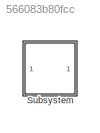
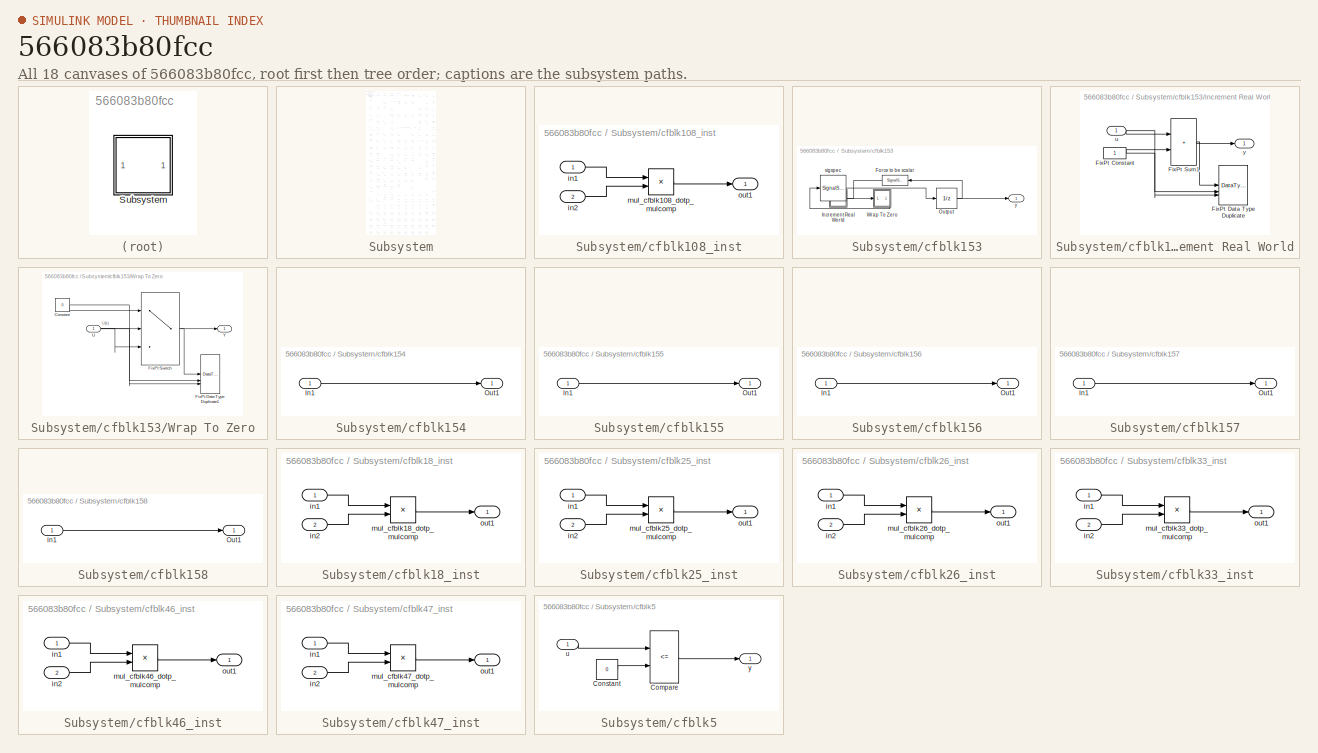
[diagram: thumbnail index - all 18 canvases of the model, root first then tree order]
MODEL slx_566083b80fcc
KIND model
CONFIG AbsTol = auto
CONFIG EnableMultiTasking = off
CONFIG FixedStep = auto
CONFIG MaxStep = auto
CONFIG MinStep = auto
CONFIG RelTol = 1e-3
CONFIG SampleTimeConstraint = Unconstrained
CONFIG SolverName = VariableStepAuto
CONFIG StartTime = 0.0
CONFIG StopTime = 10.0
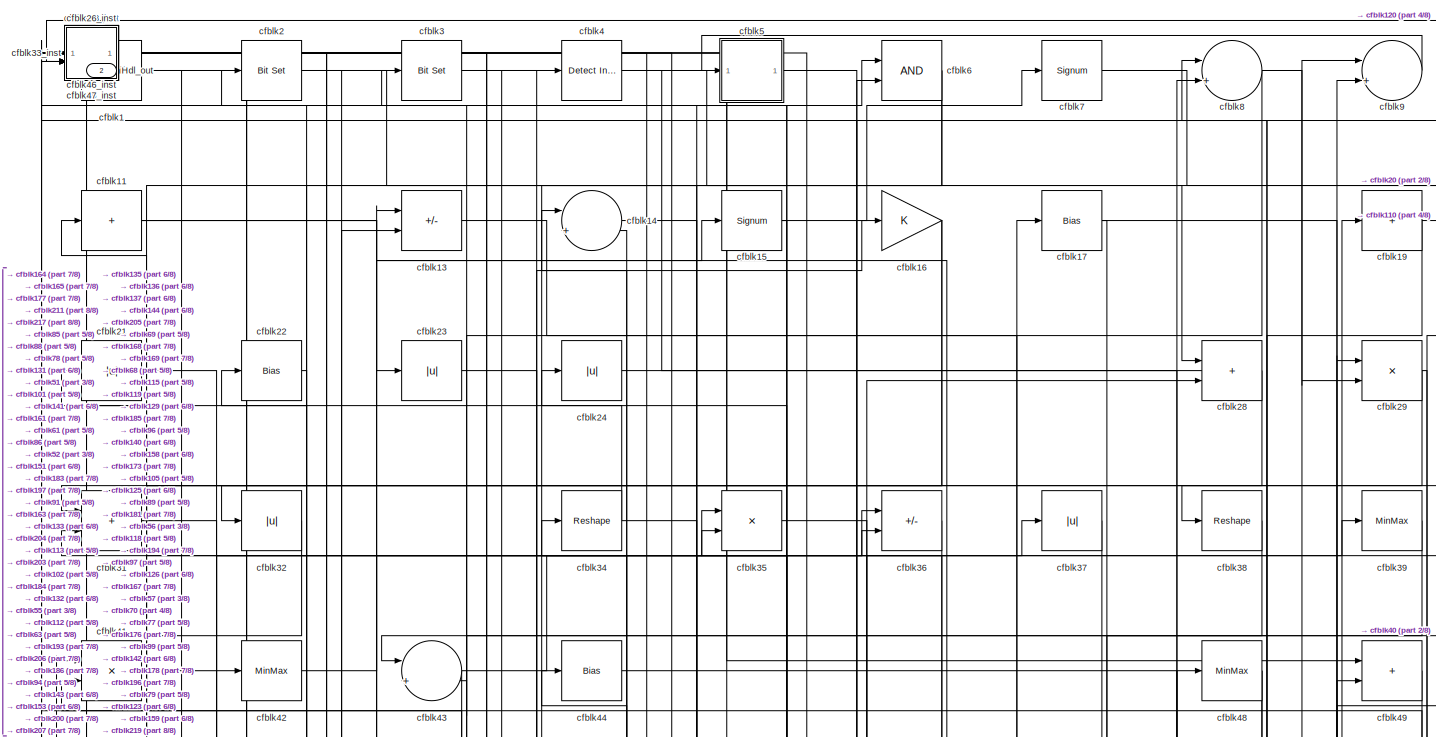
[diagram: Subsystem - part 1/8, full width, top band]
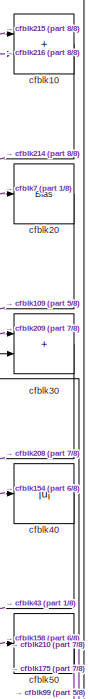
[diagram: Subsystem - part 2/8, top right region]
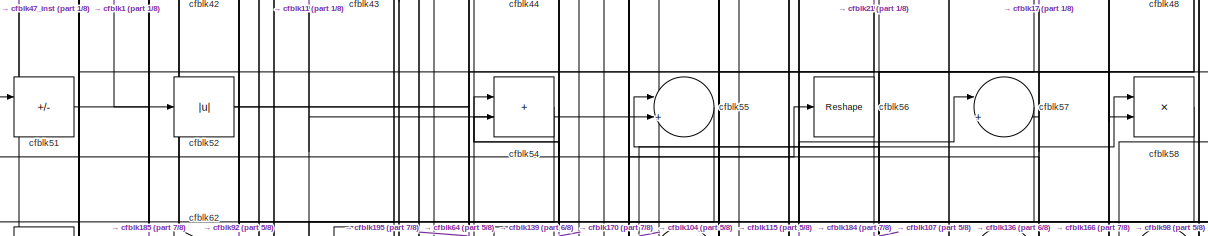
[diagram: Subsystem - part 3/8, full width, top band]
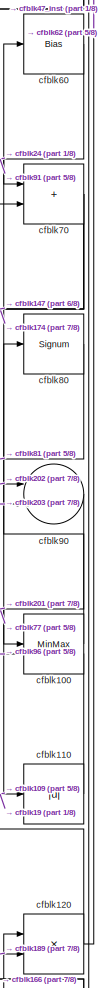
[diagram: Subsystem - part 4/8, middle right region]
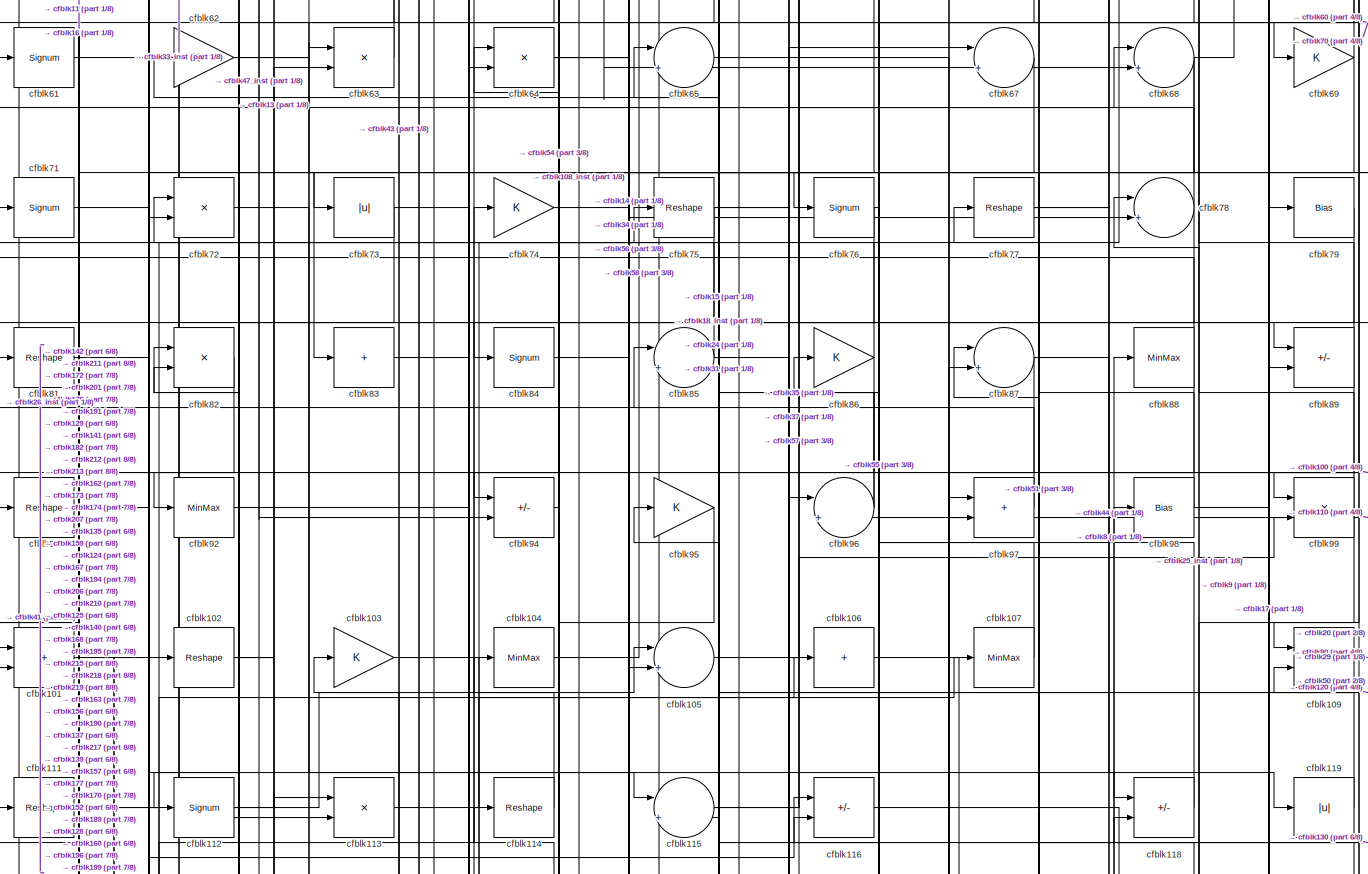
[diagram: Subsystem - part 5/8, full width, middle band]
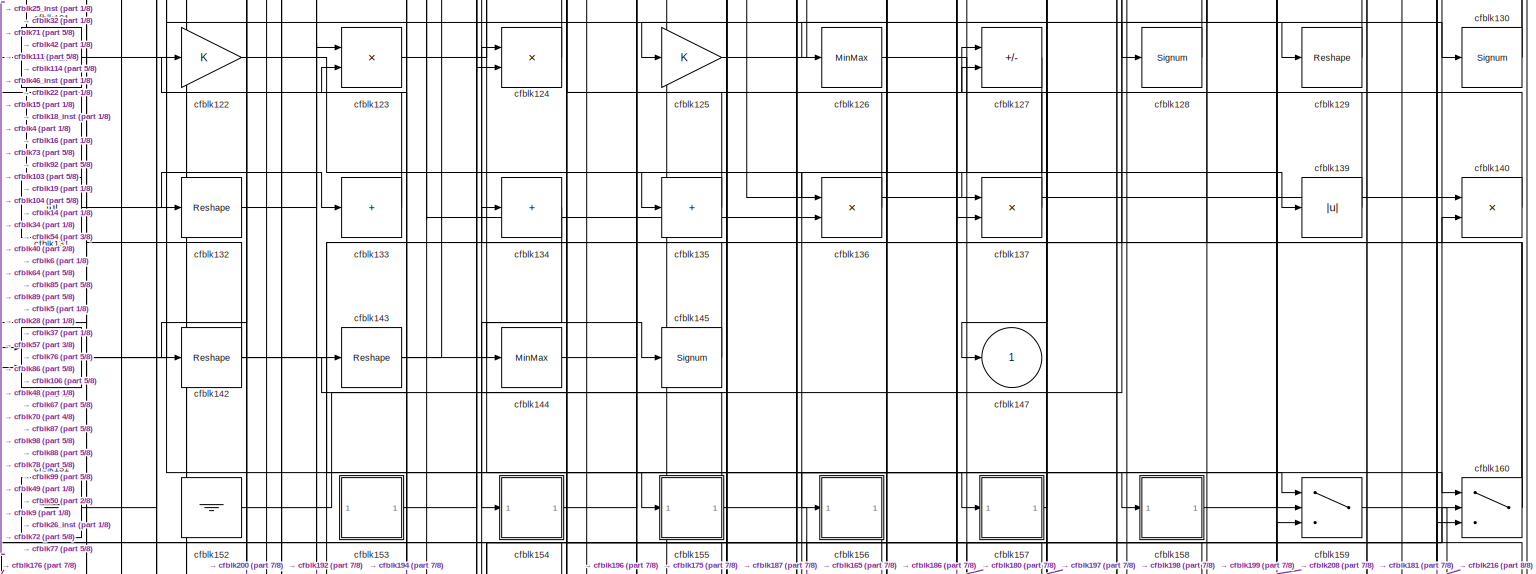
[diagram: Subsystem - part 6/8, full width, middle band]
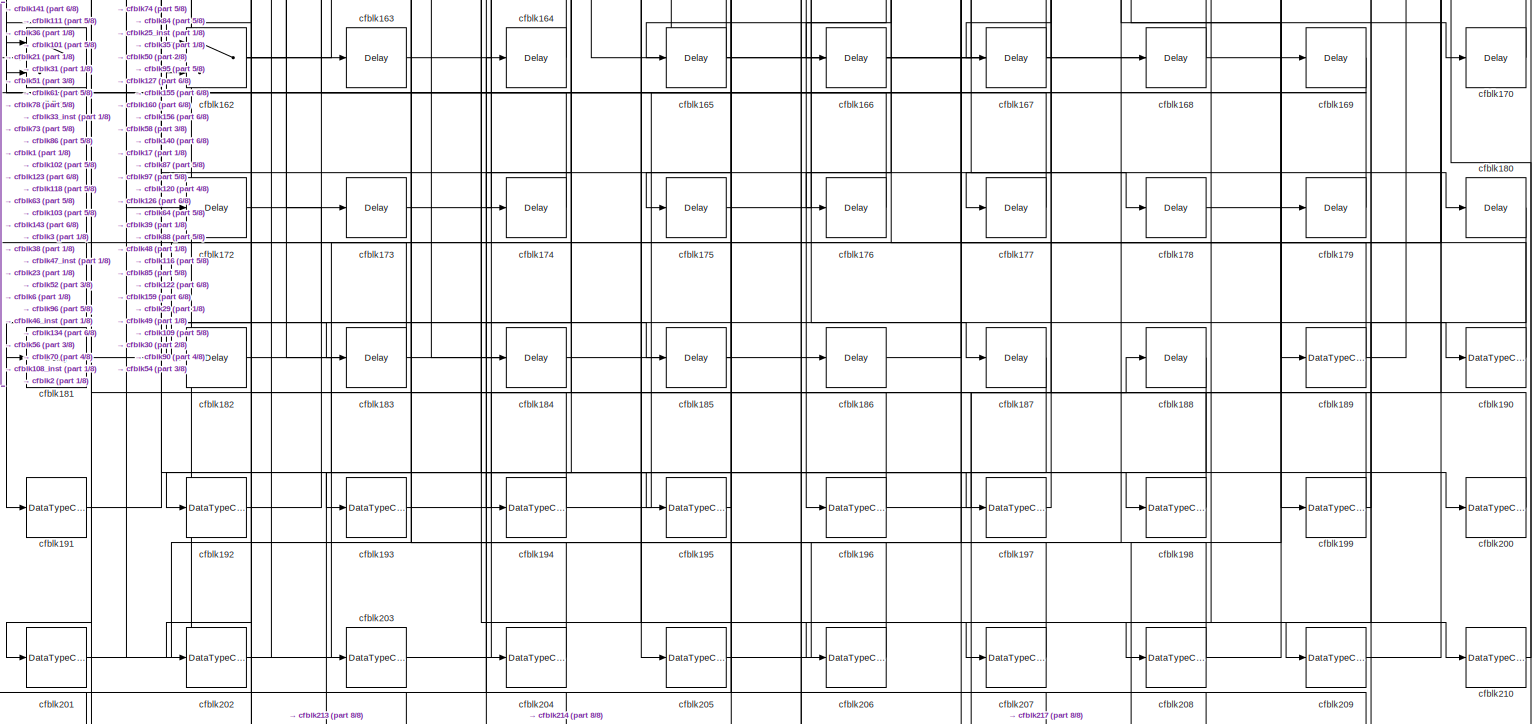
[diagram: Subsystem - part 7/8, full width, bottom band]
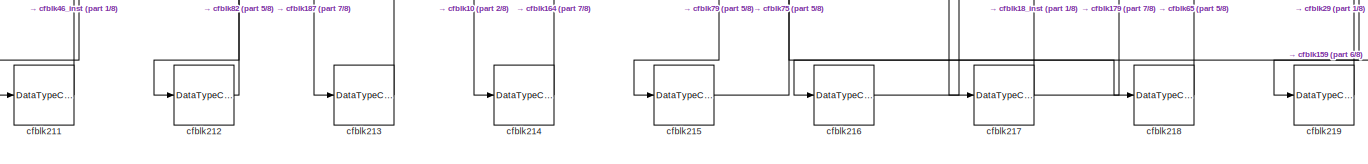
[diagram: Subsystem - part 8/8, full width, bottom band]
BLOCK [SubSystem] Subsystem
BLOCK [Outport] Subsystem/Hdl_out
  OutDataTypeStr = uint8
  Port = 2
  SampleTime = 1
BLOCK [Reference] Subsystem/cfblk1  REF=hdlsllib/Logic and Bit
Operations/Bit Shift
  SourceBlock = hdlsllib/Logic and Bit\nOperations/Bit Shift
  SourceType = Bit Shift
BLOCK [Sum] Subsystem/cfblk10
  IconShape = rectangular
  OutDataTypeStr = uint8
BLOCK [MinMax] Subsystem/cfblk100
  OutDataTypeStr = uint8
BLOCK [Sum] Subsystem/cfblk101
  IconShape = rectangular
  OutDataTypeStr = uint8
BLOCK [Reshape] Subsystem/cfblk102
BLOCK [Gain] Subsystem/cfblk103
  OutDataTypeStr = uint8
BLOCK [MinMax] Subsystem/cfblk104
  OutDataTypeStr = uint8
BLOCK [Sum] Subsystem/cfblk105
  Inputs = |++
  OutDataTypeStr = uint8
BLOCK [Sum] Subsystem/cfblk106
  IconShape = rectangular
  Inputs = +
  OutDataTypeStr = uint8
BLOCK [MinMax] Subsystem/cfblk107
  OutDataTypeStr = uint8
BLOCK [SubSystem] Subsystem/cfblk108_inst
BLOCK [Inport] Subsystem/cfblk108_inst/in1
  OutDataTypeStr = uint8
  SampleTime = 1
BLOCK [Inport] Subsystem/cfblk108_inst/in2
  OutDataTypeStr = uint8
  Port = 2
  SampleTime = 1
BLOCK [Product] Subsystem/cfblk108_inst/mul_cfblk108_dotp_mulcomp
  Inputs = **
  OutDataTypeStr = uint8
  SampleTime = 1
BLOCK [Outport] Subsystem/cfblk108_inst/out1
  OutDataTypeStr = uint8
  SampleTime = 1
BLOCK [Product] Subsystem/cfblk109
  Inputs = */
  OutDataTypeStr = uint8
  RndMeth = Zero
  SaturateOnIntegerOverflow = on
BLOCK [Sum] Subsystem/cfblk11
  IconShape = rectangular
  Inputs = +
  OutDataTypeStr = uint8
BLOCK [Abs] Subsystem/cfblk110
  OutDataTypeStr = uint8
  SaturateOnIntegerOverflow = off
BLOCK [Reshape] Subsystem/cfblk111
BLOCK [Signum] Subsystem/cfblk112
BLOCK [Product] Subsystem/cfblk113
  Inputs = */
  OutDataTypeStr = uint8
  RndMeth = Zero
  SaturateOnIntegerOverflow = on
BLOCK [Reshape] Subsystem/cfblk114
BLOCK [Sum] Subsystem/cfblk115
  Inputs = |++
  OutDataTypeStr = uint8
BLOCK [Sum] Subsystem/cfblk116
  IconShape = rectangular
  Inputs = +-
  OutDataTypeStr = uint8
BLOCK [Sum] Subsystem/cfblk118
  IconShape = rectangular
  Inputs = +-
  OutDataTypeStr = uint8
BLOCK [Abs] Subsystem/cfblk119
  OutDataTypeStr = uint8
  SaturateOnIntegerOverflow = off
BLOCK [Product] Subsystem/cfblk120
  Inputs = */
  OutDataTypeStr = uint8
  RndMeth = Zero
  SaturateOnIntegerOverflow = on
BLOCK [MinMax] Subsystem/cfblk121
  OutDataTypeStr = uint8
BLOCK [Gain] Subsystem/cfblk122
  OutDataTypeStr = uint8
BLOCK [Product] Subsystem/cfblk123
  Inputs = */
  OutDataTypeStr = uint8
  RndMeth = Zero
  SaturateOnIntegerOverflow = on
BLOCK [Product] Subsystem/cfblk124
  Inputs = */
  OutDataTypeStr = uint8
  RndMeth = Zero
  SaturateOnIntegerOverflow = on
BLOCK [Gain] Subsystem/cfblk125
  OutDataTypeStr = uint8
BLOCK [MinMax] Subsystem/cfblk126
  OutDataTypeStr = uint8
BLOCK [Sum] Subsystem/cfblk127
  IconShape = rectangular
  Inputs = +-
  OutDataTypeStr = uint8
BLOCK [Signum] Subsystem/cfblk128
BLOCK [Reshape] Subsystem/cfblk129
BLOCK [Sum] Subsystem/cfblk13
  IconShape = rectangular
  Inputs = +-
  OutDataTypeStr = uint8
BLOCK [Signum] Subsystem/cfblk130
BLOCK [Abs] Subsystem/cfblk131
  OutDataTypeStr = uint8
  SaturateOnIntegerOverflow = off
BLOCK [Reshape] Subsystem/cfblk132
BLOCK [Sum] Subsystem/cfblk133
  IconShape = rectangular
  Inputs = +
  OutDataTypeStr = uint8
BLOCK [Sum] Subsystem/cfblk134
  IconShape = rectangular
  Inputs = +
  OutDataTypeStr = uint8
BLOCK [Sum] Subsystem/cfblk135
  IconShape = rectangular
  Inputs = +
  OutDataTypeStr = uint8
BLOCK [Product] Subsystem/cfblk136
  Inputs = */
  OutDataTypeStr = uint8
  RndMeth = Zero
  SaturateOnIntegerOverflow = on
BLOCK [Product] Subsystem/cfblk137
  Inputs = */
  OutDataTypeStr = uint8
  RndMeth = Zero
  SaturateOnIntegerOverflow = on
BLOCK [Abs] Subsystem/cfblk139
  OutDataTypeStr = uint8
  SaturateOnIntegerOverflow = off
BLOCK [Sum] Subsystem/cfblk14
  Inputs = |++
  OutDataTypeStr = uint8
BLOCK [Product] Subsystem/cfblk140
  Inputs = */
  OutDataTypeStr = uint8
  RndMeth = Zero
  SaturateOnIntegerOverflow = on
BLOCK [Sum] Subsystem/cfblk141
  IconShape = rectangular
  OutDataTypeStr = uint8
BLOCK [Reshape] Subsystem/cfblk142
BLOCK [Reshape] Subsystem/cfblk143
BLOCK [MinMax] Subsystem/cfblk144
  OutDataTypeStr = uint8
BLOCK [Signum] Subsystem/cfblk145
BLOCK [Outport] Subsystem/cfblk147
  OutDataTypeStr = uint8
  SampleTime = 1
  VectorParamsAs1DForOutWhenUnconnected = off
BLOCK [Signum] Subsystem/cfblk15
BLOCK [Ground] Subsystem/cfblk151
BLOCK [Ground] Subsystem/cfblk152
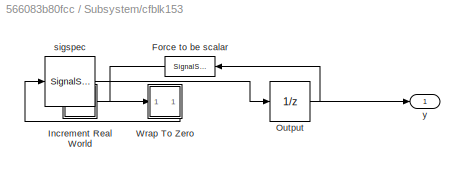
BLOCK [SubSystem] Subsystem/cfblk153
BLOCK [SignalSpecification] Subsystem/cfblk153/Force to be scalar
  Dimensions = 1
  DisableCoverage = on
BLOCK [SubSystem] Subsystem/cfblk153/Increment Real World
BLOCK [Constant] Subsystem/cfblk153/Increment Real World/FixPt Constant
  DisableCoverage = on
  OutDataTypeStr = Inherit: Inherit via back propagation
  SampleTime = -1
BLOCK [DataTypeDuplicate] Subsystem/cfblk153/Increment Real World/FixPt Data Type Duplicate
  DisableCoverage = on
  NumInputPorts = 3
BLOCK [Sum] Subsystem/cfblk153/Increment Real World/FixPt Sum1
  IconShape = rectangular
  InputSameDT = on
  LockScale = on
  OutDataTypeStr = Inherit: Inherit via back propagation
BLOCK [Inport] Subsystem/cfblk153/Increment Real World/u
  OutDataTypeStr = uint16
  SampleTime = 1
BLOCK [Outport] Subsystem/cfblk153/Increment Real World/y
  SampleTime = 1
BLOCK [UnitDelay] Subsystem/cfblk153/Output
  HasFrameUpgradeWarning = on
  InitialCondition = 0.0
  SampleTime = tsamp
BLOCK [SubSystem] Subsystem/cfblk153/Wrap To Zero
BLOCK [Constant] Subsystem/cfblk153/Wrap To Zero/Constant
  DisableCoverage = on
  OutDataTypeStr = Inherit: Inherit via back propagation
  SampleTime = -1
  Value = 0
BLOCK [DataTypeDuplicate] Subsystem/cfblk153/Wrap To Zero/FixPt Data Type Duplicate1
  DisableCoverage = on
  NumInputPorts = 3
BLOCK [Switch] Subsystem/cfblk153/Wrap To Zero/FixPt Switch
  Criteria = u2 > Threshold
  InputSameDT = off
  OutDataTypeStr = Inherit: Inherit via back propagation
  SaturateOnIntegerOverflow = off
  Threshold = Threshold
  ZeroCross = off
BLOCK [Inport] Subsystem/cfblk153/Wrap To Zero/U
  OutDataTypeStr = uint16
  SampleTime = 1
BLOCK [Outport] Subsystem/cfblk153/Wrap To Zero/Y
  SampleTime = 1
BLOCK [SignalSpecification] Subsystem/cfblk153/sigspec
  Dimensions = 1
  OutDataTypeStr = uint16
BLOCK [Outport] Subsystem/cfblk153/y
  SampleTime = 1
BLOCK [SubSystem] Subsystem/cfblk154
BLOCK [Inport] Subsystem/cfblk154/In1
  OutDataTypeStr = uint8
  PortDimensions = 1
  SampleTime = 1
BLOCK [Outport] Subsystem/cfblk154/Out1
  SampleTime = 1
BLOCK [SubSystem] Subsystem/cfblk155
BLOCK [Inport] Subsystem/cfblk155/In1
  OutDataTypeStr = uint8
  PortDimensions = 1
  SampleTime = 1
BLOCK [Outport] Subsystem/cfblk155/Out1
  SampleTime = 1
BLOCK [SubSystem] Subsystem/cfblk156
BLOCK [Inport] Subsystem/cfblk156/In1
  OutDataTypeStr = uint8
  PortDimensions = 1
  SampleTime = 1
BLOCK [Outport] Subsystem/cfblk156/Out1
  SampleTime = 1
BLOCK [SubSystem] Subsystem/cfblk157
BLOCK [Inport] Subsystem/cfblk157/In1
  OutDataTypeStr = uint8
  PortDimensions = 1
  SampleTime = 1
BLOCK [Outport] Subsystem/cfblk157/Out1
  SampleTime = 1
BLOCK [SubSystem] Subsystem/cfblk158
BLOCK [Inport] Subsystem/cfblk158/In1
  OutDataTypeStr = uint8
  PortDimensions = 1
  SampleTime = 1
BLOCK [Outport] Subsystem/cfblk158/Out1
  SampleTime = 1
BLOCK [Switch] Subsystem/cfblk159
  InputSameDT = off
  OutDataTypeStr = uint8
  SaturateOnIntegerOverflow = off
BLOCK [Gain] Subsystem/cfblk16
  OutDataTypeStr = uint8
BLOCK [Switch] Subsystem/cfblk160
  InputSameDT = off
  OutDataTypeStr = uint8
  SaturateOnIntegerOverflow = off
BLOCK [Switch] Subsystem/cfblk161
  InputSameDT = off
  OutDataTypeStr = uint8
  SaturateOnIntegerOverflow = off
BLOCK [Switch] Subsystem/cfblk162
  InputSameDT = off
  OutDataTypeStr = uint8
  SaturateOnIntegerOverflow = off
BLOCK [Delay] Subsystem/cfblk163
  InputPortMap = u0
  SampleTime = 1
BLOCK [Delay] Subsystem/cfblk164
  InputPortMap = u0
  SampleTime = 1
BLOCK [Delay] Subsystem/cfblk165
  InputPortMap = u0
  SampleTime = 1
BLOCK [Delay] Subsystem/cfblk166
  InputPortMap = u0
  SampleTime = 1
BLOCK [Delay] Subsystem/cfblk167
  InputPortMap = u0
  SampleTime = 1
BLOCK [Delay] Subsystem/cfblk168
  InputPortMap = u0
  SampleTime = 1
BLOCK [Delay] Subsystem/cfblk169
  InputPortMap = u0
  SampleTime = 1
BLOCK [Bias] Subsystem/cfblk17
  Bias = 0.0
  SaturateOnIntegerOverflow = off
BLOCK [Delay] Subsystem/cfblk170
  InputPortMap = u0
  SampleTime = 1
BLOCK [Delay] Subsystem/cfblk172
  InputPortMap = u0
  SampleTime = 1
BLOCK [Delay] Subsystem/cfblk173
  InputPortMap = u0
  SampleTime = 1
BLOCK [Delay] Subsystem/cfblk174
  InputPortMap = u0
  SampleTime = 1
BLOCK [Delay] Subsystem/cfblk175
  InputPortMap = u0
  SampleTime = 1
BLOCK [Delay] Subsystem/cfblk176
  InputPortMap = u0
  SampleTime = 1
BLOCK [Delay] Subsystem/cfblk177
  InputPortMap = u0
  SampleTime = 1
BLOCK [Delay] Subsystem/cfblk178
  InputPortMap = u0
  SampleTime = 1
BLOCK [Delay] Subsystem/cfblk179
  InputPortMap = u0
  SampleTime = 1
BLOCK [Delay] Subsystem/cfblk180
  InputPortMap = u0
  SampleTime = 1
BLOCK [Delay] Subsystem/cfblk181
  InputPortMap = u0
  SampleTime = 1
BLOCK [Delay] Subsystem/cfblk182
  InputPortMap = u0
  SampleTime = 1
BLOCK [Delay] Subsystem/cfblk183
  InputPortMap = u0
  SampleTime = 1
BLOCK [Delay] Subsystem/cfblk184
  InputPortMap = u0
  SampleTime = 1
BLOCK [Delay] Subsystem/cfblk185
  InputPortMap = u0
  SampleTime = 1
BLOCK [Delay] Subsystem/cfblk186
  InputPortMap = u0
  SampleTime = 1
BLOCK [Delay] Subsystem/cfblk187
  InputPortMap = u0
  SampleTime = 1
BLOCK [Delay] Subsystem/cfblk188
  InputPortMap = u0
  SampleTime = 1
BLOCK [DataTypeConversion] Subsystem/cfblk189
  OutDataTypeStr = uint8
  RndMeth = Floor
  SaturateOnIntegerOverflow = off
BLOCK [SubSystem] Subsystem/cfblk18_inst
BLOCK [Inport] Subsystem/cfblk18_inst/in1
  OutDataTypeStr = uint8
  SampleTime = 1
BLOCK [Inport] Subsystem/cfblk18_inst/in2
  OutDataTypeStr = uint8
  Port = 2
  SampleTime = 1
BLOCK [Product] Subsystem/cfblk18_inst/mul_cfblk18_dotp_mulcomp
  Inputs = **
  OutDataTypeStr = uint8
  SampleTime = 1
BLOCK [Outport] Subsystem/cfblk18_inst/out1
  OutDataTypeStr = uint8
  SampleTime = 1
BLOCK [Sum] Subsystem/cfblk19
  IconShape = rectangular
  Inputs = +
  OutDataTypeStr = uint8
BLOCK [DataTypeConversion] Subsystem/cfblk190
  OutDataTypeStr = uint8
  RndMeth = Floor
  SaturateOnIntegerOverflow = off
BLOCK [DataTypeConversion] Subsystem/cfblk191
  OutDataTypeStr = uint8
  RndMeth = Floor
  SaturateOnIntegerOverflow = off
BLOCK [DataTypeConversion] Subsystem/cfblk192
  OutDataTypeStr = uint8
  RndMeth = Floor
  SaturateOnIntegerOverflow = off
BLOCK [DataTypeConversion] Subsystem/cfblk193
  OutDataTypeStr = uint8
  RndMeth = Floor
  SaturateOnIntegerOverflow = off
BLOCK [DataTypeConversion] Subsystem/cfblk194
  OutDataTypeStr = uint8
  RndMeth = Floor
  SaturateOnIntegerOverflow = off
BLOCK [DataTypeConversion] Subsystem/cfblk195
  OutDataTypeStr = uint8
  RndMeth = Floor
  SaturateOnIntegerOverflow = off
BLOCK [DataTypeConversion] Subsystem/cfblk196
  OutDataTypeStr = uint8
  RndMeth = Floor
  SaturateOnIntegerOverflow = off
BLOCK [DataTypeConversion] Subsystem/cfblk197
  OutDataTypeStr = uint8
  RndMeth = Floor
  SaturateOnIntegerOverflow = off
BLOCK [DataTypeConversion] Subsystem/cfblk198
  OutDataTypeStr = uint8
  RndMeth = Floor
  SaturateOnIntegerOverflow = off
BLOCK [DataTypeConversion] Subsystem/cfblk199
  OutDataTypeStr = uint8
  RndMeth = Floor
  SaturateOnIntegerOverflow = off
BLOCK [Reference] Subsystem/cfblk2  REF=simulink/Logic and Bit
Operations/Bit Set
  LibrarySourceBlock = hdlsllib/Logic and Bit\nOperations/Bit Set
  SourceBlock = simulink/Logic and Bit\nOperations/Bit Set
  SourceType = Bit Set
BLOCK [Bias] Subsystem/cfblk20
  Bias = 0.0
  SaturateOnIntegerOverflow = off
BLOCK [DataTypeConversion] Subsystem/cfblk200
  OutDataTypeStr = uint8
  RndMeth = Floor
  SaturateOnIntegerOverflow = off
BLOCK [DataTypeConversion] Subsystem/cfblk201
  OutDataTypeStr = uint8
  RndMeth = Floor
  SaturateOnIntegerOverflow = off
BLOCK [DataTypeConversion] Subsystem/cfblk202
  OutDataTypeStr = uint8
  RndMeth = Floor
  SaturateOnIntegerOverflow = off
BLOCK [DataTypeConversion] Subsystem/cfblk203
  OutDataTypeStr = uint8
  RndMeth = Floor
  SaturateOnIntegerOverflow = off
BLOCK [DataTypeConversion] Subsystem/cfblk204
  OutDataTypeStr = uint8
  RndMeth = Floor
  SaturateOnIntegerOverflow = off
BLOCK [DataTypeConversion] Subsystem/cfblk205
  OutDataTypeStr = uint8
  RndMeth = Floor
  SaturateOnIntegerOverflow = off
BLOCK [DataTypeConversion] Subsystem/cfblk206
  OutDataTypeStr = uint8
  RndMeth = Floor
  SaturateOnIntegerOverflow = off
BLOCK [DataTypeConversion] Subsystem/cfblk207
  OutDataTypeStr = uint8
  RndMeth = Floor
  SaturateOnIntegerOverflow = off
BLOCK [DataTypeConversion] Subsystem/cfblk208
  OutDataTypeStr = uint8
  RndMeth = Floor
  SaturateOnIntegerOverflow = off
BLOCK [DataTypeConversion] Subsystem/cfblk209
  OutDataTypeStr = uint8
  RndMeth = Floor
  SaturateOnIntegerOverflow = off
BLOCK [Abs] Subsystem/cfblk21
  OutDataTypeStr = uint8
  SaturateOnIntegerOverflow = off
BLOCK [DataTypeConversion] Subsystem/cfblk210
  OutDataTypeStr = uint8
  RndMeth = Floor
  SaturateOnIntegerOverflow = off
BLOCK [DataTypeConversion] Subsystem/cfblk211
  OutDataTypeStr = uint8
  RndMeth = Floor
  SaturateOnIntegerOverflow = off
BLOCK [DataTypeConversion] Subsystem/cfblk212
  OutDataTypeStr = uint8
  RndMeth = Floor
  SaturateOnIntegerOverflow = off
BLOCK [DataTypeConversion] Subsystem/cfblk213
  OutDataTypeStr = uint8
  RndMeth = Floor
  SaturateOnIntegerOverflow = off
BLOCK [DataTypeConversion] Subsystem/cfblk214
  OutDataTypeStr = uint8
  RndMeth = Floor
  SaturateOnIntegerOverflow = off
BLOCK [DataTypeConversion] Subsystem/cfblk215
  OutDataTypeStr = uint8
  RndMeth = Floor
  SaturateOnIntegerOverflow = off
BLOCK [DataTypeConversion] Subsystem/cfblk216
  OutDataTypeStr = uint8
  RndMeth = Floor
  SaturateOnIntegerOverflow = off
BLOCK [DataTypeConversion] Subsystem/cfblk217
  OutDataTypeStr = uint8
  RndMeth = Floor
  SaturateOnIntegerOverflow = off
BLOCK [DataTypeConversion] Subsystem/cfblk218
  OutDataTypeStr = uint8
  RndMeth = Floor
  SaturateOnIntegerOverflow = off
BLOCK [DataTypeConversion] Subsystem/cfblk219
  OutDataTypeStr = uint8
  RndMeth = Floor
  SaturateOnIntegerOverflow = off
BLOCK [Bias] Subsystem/cfblk22
  Bias = 0.0
  SaturateOnIntegerOverflow = off
BLOCK [Abs] Subsystem/cfblk23
  OutDataTypeStr = uint8
  SaturateOnIntegerOverflow = off
BLOCK [Abs] Subsystem/cfblk24
  OutDataTypeStr = uint8
  SaturateOnIntegerOverflow = off
BLOCK [SubSystem] Subsystem/cfblk25_inst
BLOCK [Inport] Subsystem/cfblk25_inst/in1
  OutDataTypeStr = uint8
  SampleTime = 1
BLOCK [Inport] Subsystem/cfblk25_inst/in2
  OutDataTypeStr = uint8
  Port = 2
  SampleTime = 1
BLOCK [Product] Subsystem/cfblk25_inst/mul_cfblk25_dotp_mulcomp
  Inputs = **
  OutDataTypeStr = uint8
  SampleTime = 1
BLOCK [Outport] Subsystem/cfblk25_inst/out1
  OutDataTypeStr = uint8
  SampleTime = 1
BLOCK [SubSystem] Subsystem/cfblk26_inst
BLOCK [Inport] Subsystem/cfblk26_inst/in1
  OutDataTypeStr = uint8
  SampleTime = 1
BLOCK [Inport] Subsystem/cfblk26_inst/in2
  OutDataTypeStr = uint8
  Port = 2
  SampleTime = 1
BLOCK [Product] Subsystem/cfblk26_inst/mul_cfblk26_dotp_mulcomp
  Inputs = **
  OutDataTypeStr = uint8
  SampleTime = 1
BLOCK [Outport] Subsystem/cfblk26_inst/out1
  OutDataTypeStr = uint8
  SampleTime = 1
BLOCK [Sum] Subsystem/cfblk28
  IconShape = rectangular
  OutDataTypeStr = uint8
BLOCK [Product] Subsystem/cfblk29
  Inputs = */
  OutDataTypeStr = uint8
  RndMeth = Zero
  SaturateOnIntegerOverflow = on
BLOCK [Reference] Subsystem/cfblk3  REF=simulink/Logic and Bit
Operations/Bit Set
  LibrarySourceBlock = hdlsllib/Logic and Bit\nOperations/Bit Set
  SourceBlock = simulink/Logic and Bit\nOperations/Bit Set
  SourceType = Bit Set
BLOCK [Sum] Subsystem/cfblk30
  IconShape = rectangular
  OutDataTypeStr = uint8
BLOCK [Sum] Subsystem/cfblk31
  IconShape = rectangular
  OutDataTypeStr = uint8
BLOCK [Abs] Subsystem/cfblk32
  OutDataTypeStr = uint8
  SaturateOnIntegerOverflow = off
BLOCK [SubSystem] Subsystem/cfblk33_inst
BLOCK [Inport] Subsystem/cfblk33_inst/in1
  OutDataTypeStr = uint8
  SampleTime = 1
BLOCK [Inport] Subsystem/cfblk33_inst/in2
  OutDataTypeStr = uint8
  Port = 2
  SampleTime = 1
BLOCK [Product] Subsystem/cfblk33_inst/mul_cfblk33_dotp_mulcomp
  Inputs = **
  OutDataTypeStr = uint8
  SampleTime = 1
BLOCK [Outport] Subsystem/cfblk33_inst/out1
  OutDataTypeStr = uint8
  SampleTime = 1
BLOCK [Reshape] Subsystem/cfblk34
BLOCK [Product] Subsystem/cfblk35
  Inputs = */
  OutDataTypeStr = uint8
  RndMeth = Zero
  SaturateOnIntegerOverflow = on
BLOCK [Sum] Subsystem/cfblk36
  IconShape = rectangular
  Inputs = +-
  OutDataTypeStr = uint8
BLOCK [Abs] Subsystem/cfblk37
  OutDataTypeStr = uint8
  SaturateOnIntegerOverflow = off
BLOCK [Reshape] Subsystem/cfblk38
BLOCK [MinMax] Subsystem/cfblk39
  OutDataTypeStr = uint8
BLOCK [Reference] Subsystem/cfblk4  REF=simulink/Logic and Bit
Operations/Detect
Increase
  LibrarySourceBlock = hdlsllib/Logic and Bit\nOperations/Detect\nIncrease
  SourceBlock = simulink/Logic and Bit\nOperations/Detect\nIncrease
  SourceType = Detect Increase
BLOCK [Abs] Subsystem/cfblk40
  OutDataTypeStr = uint8
  SaturateOnIntegerOverflow = off
BLOCK [Product] Subsystem/cfblk41
  Inputs = */
  OutDataTypeStr = uint8
  RndMeth = Zero
  SaturateOnIntegerOverflow = on
BLOCK [MinMax] Subsystem/cfblk42
  OutDataTypeStr = uint8
BLOCK [Sum] Subsystem/cfblk43
  Inputs = |++
  OutDataTypeStr = uint8
BLOCK [Bias] Subsystem/cfblk44
  Bias = 0.0
  SaturateOnIntegerOverflow = off
BLOCK [SubSystem] Subsystem/cfblk46_inst
BLOCK [Inport] Subsystem/cfblk46_inst/in1
  OutDataTypeStr = uint8
  SampleTime = 1
BLOCK [Inport] Subsystem/cfblk46_inst/in2
  OutDataTypeStr = uint8
  Port = 2
  SampleTime = 1
BLOCK [Product] Subsystem/cfblk46_inst/mul_cfblk46_dotp_mulcomp
  Inputs = **
  OutDataTypeStr = uint8
  SampleTime = 1
BLOCK [Outport] Subsystem/cfblk46_inst/out1
  OutDataTypeStr = uint8
  SampleTime = 1
BLOCK [SubSystem] Subsystem/cfblk47_inst
BLOCK [Inport] Subsystem/cfblk47_inst/in1
  OutDataTypeStr = uint8
  SampleTime = 1
BLOCK [Inport] Subsystem/cfblk47_inst/in2
  OutDataTypeStr = uint8
  Port = 2
  SampleTime = 1
BLOCK [Product] Subsystem/cfblk47_inst/mul_cfblk47_dotp_mulcomp
  Inputs = **
  OutDataTypeStr = uint8
  SampleTime = 1
BLOCK [Outport] Subsystem/cfblk47_inst/out1
  OutDataTypeStr = uint8
  SampleTime = 1
BLOCK [MinMax] Subsystem/cfblk48
  OutDataTypeStr = uint8
BLOCK [Sum] Subsystem/cfblk49
  IconShape = rectangular
  OutDataTypeStr = uint8
BLOCK [SubSystem] Subsystem/cfblk5
BLOCK [RelationalOperator] Subsystem/cfblk5/Compare
  Operator = <=
  OutDataTypeStr = fixdt(0, 8)
BLOCK [Constant] Subsystem/cfblk5/Constant
  DisableCoverage = on
  OutDataTypeStr = Inherit: Inherit via back propagation
  PreserveConstantTs = on
  SampleTime = -1
  Value = 0
BLOCK [Inport] Subsystem/cfblk5/u
  OutDataTypeStr = uint8
  SampleTime = 1
BLOCK [Outport] Subsystem/cfblk5/y
  SampleTime = 1
BLOCK [Reshape] Subsystem/cfblk50
BLOCK [Sum] Subsystem/cfblk51
  IconShape = rectangular
  Inputs = +-
  OutDataTypeStr = uint8
BLOCK [Abs] Subsystem/cfblk52
  OutDataTypeStr = uint8
  SaturateOnIntegerOverflow = off
BLOCK [Sum] Subsystem/cfblk54
  IconShape = rectangular
  OutDataTypeStr = uint8
BLOCK [Sum] Subsystem/cfblk55
  Inputs = |++
  OutDataTypeStr = uint8
BLOCK [Reshape] Subsystem/cfblk56
BLOCK [Sum] Subsystem/cfblk57
  Inputs = |++
  OutDataTypeStr = uint8
BLOCK [Product] Subsystem/cfblk58
  Inputs = */
  OutDataTypeStr = uint8
  RndMeth = Zero
  SaturateOnIntegerOverflow = on
BLOCK [Logic] Subsystem/cfblk6
  AllPortsSameDT = off
  OutDataTypeStr = boolean
BLOCK [Bias] Subsystem/cfblk60
  Bias = 0.0
  SaturateOnIntegerOverflow = off
BLOCK [Signum] Subsystem/cfblk61
BLOCK [Gain] Subsystem/cfblk62
  OutDataTypeStr = uint8
BLOCK [Product] Subsystem/cfblk63
  Inputs = */
  OutDataTypeStr = uint8
  RndMeth = Zero
  SaturateOnIntegerOverflow = on
BLOCK [Product] Subsystem/cfblk64
  Inputs = */
  OutDataTypeStr = uint8
  RndMeth = Zero
  SaturateOnIntegerOverflow = on
BLOCK [Sum] Subsystem/cfblk65
  Inputs = |++
  OutDataTypeStr = uint8
BLOCK [Sum] Subsystem/cfblk67
  Inputs = |++
  OutDataTypeStr = uint8
BLOCK [Sum] Subsystem/cfblk68
  Inputs = |++
  OutDataTypeStr = uint8
BLOCK [Gain] Subsystem/cfblk69
  OutDataTypeStr = uint8
BLOCK [Signum] Subsystem/cfblk7
BLOCK [Sum] Subsystem/cfblk70
  IconShape = rectangular
  OutDataTypeStr = uint8
BLOCK [Signum] Subsystem/cfblk71
BLOCK [Product] Subsystem/cfblk72
  Inputs = */
  OutDataTypeStr = uint8
  RndMeth = Zero
  SaturateOnIntegerOverflow = on
BLOCK [Abs] Subsystem/cfblk73
  OutDataTypeStr = uint8
  SaturateOnIntegerOverflow = off
BLOCK [Gain] Subsystem/cfblk74
  OutDataTypeStr = uint8
BLOCK [Reshape] Subsystem/cfblk75
BLOCK [Signum] Subsystem/cfblk76
BLOCK [Reshape] Subsystem/cfblk77
BLOCK [Sum] Subsystem/cfblk78
  Inputs = |++
  OutDataTypeStr = uint8
BLOCK [Bias] Subsystem/cfblk79
  Bias = 0.0
  SaturateOnIntegerOverflow = off
BLOCK [Sum] Subsystem/cfblk8
  Inputs = |++
  OutDataTypeStr = uint8
BLOCK [Signum] Subsystem/cfblk80
BLOCK [Reshape] Subsystem/cfblk81
BLOCK [Product] Subsystem/cfblk82
  Inputs = */
  OutDataTypeStr = uint8
  RndMeth = Zero
  SaturateOnIntegerOverflow = on
BLOCK [Sum] Subsystem/cfblk83
  IconShape = rectangular
  Inputs = +
  OutDataTypeStr = uint8
BLOCK [Signum] Subsystem/cfblk84
BLOCK [Sum] Subsystem/cfblk85
  Inputs = |++
  OutDataTypeStr = uint8
BLOCK [Gain] Subsystem/cfblk86
  OutDataTypeStr = uint8
BLOCK [Sum] Subsystem/cfblk87
  Inputs = |++
  OutDataTypeStr = uint8
BLOCK [MinMax] Subsystem/cfblk88
  OutDataTypeStr = uint8
BLOCK [Sum] Subsystem/cfblk89
  IconShape = rectangular
  Inputs = +-
  OutDataTypeStr = uint8
BLOCK [Sum] Subsystem/cfblk9
  Inputs = |++
  OutDataTypeStr = uint8
BLOCK [Sum] Subsystem/cfblk90
  Inputs = |++
  OutDataTypeStr = uint8
BLOCK [Reshape] Subsystem/cfblk91
BLOCK [MinMax] Subsystem/cfblk92
  OutDataTypeStr = uint8
BLOCK [Sum] Subsystem/cfblk94
  IconShape = rectangular
  Inputs = +-
  OutDataTypeStr = uint8
BLOCK [Gain] Subsystem/cfblk95
  OutDataTypeStr = uint8
BLOCK [Sum] Subsystem/cfblk96
  Inputs = |++
  OutDataTypeStr = uint8
BLOCK [Sum] Subsystem/cfblk97
  IconShape = rectangular
  OutDataTypeStr = uint8
BLOCK [Bias] Subsystem/cfblk98
  Bias = 0.0
  SaturateOnIntegerOverflow = off
BLOCK [Product] Subsystem/cfblk99
  Inputs = */
  OutDataTypeStr = uint8
  RndMeth = Zero
  SaturateOnIntegerOverflow = on
ANNOTATION Subsystem/cfblk153/Wrap To Zero: U(k)
LINE Subsystem/cfblk100:1 -> Subsystem/cfblk60:1
LINE Subsystem/cfblk101:1 -> Subsystem/cfblk172:1
NET Subsystem/cfblk102:1 -> Subsystem/cfblk13:2, Subsystem/cfblk173:1
LINE Subsystem/cfblk103:1 -> Subsystem/cfblk159:1
LINE Subsystem/cfblk104:1 -> Subsystem/cfblk58:1
LINE Subsystem/cfblk105:1 -> Subsystem/cfblk37:1
LINE Subsystem/cfblk106:1 -> Subsystem/cfblk139:1
LINE Subsystem/cfblk107:1 -> Subsystem/cfblk55:1
LINE Subsystem/cfblk108_inst/in1:1 -> Subsystem/cfblk108_inst/mul_cfblk108_dotp_mulcomp:1
LINE Subsystem/cfblk108_inst/in2:1 -> Subsystem/cfblk108_inst/mul_cfblk108_dotp_mulcomp:2
LINE Subsystem/cfblk108_inst/mul_cfblk108_dotp_mulcomp:1 -> Subsystem/cfblk108_inst/out1:1
NET Subsystem/cfblk108_inst:1 -> Subsystem/cfblk168:1, Subsystem/cfblk169:1, Subsystem/cfblk68:2
LINE Subsystem/cfblk109:1 -> Subsystem/cfblk80:1
LINE Subsystem/cfblk10:1 -> Subsystem/cfblk214:1
LINE Subsystem/cfblk110:1 -> Subsystem/cfblk96:2
NET Subsystem/cfblk111:1 -> Subsystem/cfblk129:1, Subsystem/cfblk75:1
NET Subsystem/cfblk112:1 -> Subsystem/cfblk105:1, Subsystem/cfblk113:1
LINE Subsystem/cfblk113:1 -> Subsystem/cfblk107:1
LINE Subsystem/cfblk114:1 -> Subsystem/cfblk74:1
NET Subsystem/cfblk115:1 -> Subsystem/cfblk57:1, Subsystem/cfblk99:2
LINE Subsystem/cfblk116:1 -> Subsystem/cfblk189:1
LINE Subsystem/cfblk118:1 -> Subsystem/cfblk13:1
LINE Subsystem/cfblk119:1 -> Subsystem/cfblk24:1
NET Subsystem/cfblk11:1 -> Subsystem/cfblk23:1, Subsystem/cfblk55:2
NET Subsystem/cfblk120:1 -> Subsystem/cfblk47_inst:2, Subsystem/cfblk62:1
LINE Subsystem/cfblk121:1 -> Subsystem/cfblk133:1
LINE Subsystem/cfblk122:1 -> Subsystem/cfblk199:1
LINE Subsystem/cfblk123:1 -> Subsystem/cfblk19:1
LINE Subsystem/cfblk124:1 -> Subsystem/cfblk104:1
LINE Subsystem/cfblk125:1 -> Subsystem/cfblk28:2
LINE Subsystem/cfblk126:1 -> Subsystem/cfblk180:1
LINE Subsystem/cfblk127:1 -> Subsystem/cfblk196:1
LINE Subsystem/cfblk128:1 -> Subsystem/cfblk88:1
LINE Subsystem/cfblk129:1 -> Subsystem/cfblk26_inst:1
NET Subsystem/cfblk130:1 -> Subsystem/cfblk72:1, Subsystem/cfblk77:1
NET Subsystem/cfblk131:1 -> Subsystem/cfblk121:1, Subsystem/cfblk157:1
LINE Subsystem/cfblk132:1 -> Subsystem/cfblk15:1
LINE Subsystem/cfblk133:1 -> Subsystem/cfblk22:1
LINE Subsystem/cfblk134:1 -> Subsystem/cfblk154:1
LINE Subsystem/cfblk135:1 -> Subsystem/cfblk14:2
LINE Subsystem/cfblk136:1 -> Subsystem/cfblk34:1
LINE Subsystem/cfblk137:1 -> Subsystem/cfblk14:1
LINE Subsystem/cfblk139:1 -> Subsystem/cfblk54:1
LINE Subsystem/cfblk13:1 -> Subsystem/cfblk97:2
LINE Subsystem/cfblk140:1 -> Subsystem/cfblk85:2
NET Subsystem/cfblk141:1 -> Subsystem/cfblk106:1, Subsystem/cfblk114:1
NET Subsystem/cfblk142:1 -> Subsystem/cfblk155:1, Subsystem/cfblk71:1, Subsystem/cfblk9:2
NET Subsystem/cfblk143:1 -> Subsystem/cfblk145:1, Subsystem/cfblk4:1
LINE Subsystem/cfblk144:1 -> Subsystem/cfblk6:1
LINE Subsystem/cfblk145:1 -> Subsystem/cfblk124:1
LINE Subsystem/cfblk14:1 -> Subsystem/cfblk69:1
LINE Subsystem/cfblk151:1 -> Subsystem/cfblk42:1
LINE Subsystem/cfblk152:1 -> Subsystem/cfblk98:1
LINE Subsystem/cfblk153:1 -> Subsystem/cfblk16:1
LINE Subsystem/cfblk154/In1:1 -> Subsystem/cfblk154/Out1:1
LINE Subsystem/cfblk154:1 -> Subsystem/cfblk40:1
LINE Subsystem/cfblk155/In1:1 -> Subsystem/cfblk155/Out1:1
NET Subsystem/cfblk155:1 -> Subsystem/cfblk144:1, Subsystem/cfblk187:1
LINE Subsystem/cfblk156/In1:1 -> Subsystem/cfblk156/Out1:1
LINE Subsystem/cfblk156:1 -> Subsystem/cfblk165:1
LINE Subsystem/cfblk157/In1:1 -> Subsystem/cfblk157/Out1:1
LINE Subsystem/cfblk157:1 -> Subsystem/cfblk87:1
LINE Subsystem/cfblk158/In1:1 -> Subsystem/cfblk158/Out1:1
LINE Subsystem/cfblk158:1 -> Subsystem/cfblk50:1
LINE Subsystem/cfblk159:1 -> Subsystem/cfblk216:1
NET Subsystem/cfblk15:1 -> Subsystem/cfblk115:2, Subsystem/cfblk7:1
NET Subsystem/cfblk160:1 -> Subsystem/cfblk67:2, Subsystem/cfblk78:1, Subsystem/cfblk86:1
LINE Subsystem/cfblk161:1 -> Subsystem/cfblk191:1
NET Subsystem/cfblk162:1 -> Subsystem/cfblk118:2, Subsystem/cfblk63:2
LINE Subsystem/cfblk163:1 -> Subsystem/cfblk96:1
LINE Subsystem/cfblk164:1 -> Subsystem/cfblk46_inst:2
LINE Subsystem/cfblk165:1 -> Subsystem/cfblk25_inst:1
LINE Subsystem/cfblk166:1 -> Subsystem/cfblk120:1
LINE Subsystem/cfblk167:1 -> Subsystem/cfblk64:1
LINE Subsystem/cfblk168:1 -> Subsystem/cfblk85:1
LINE Subsystem/cfblk169:1 -> Subsystem/cfblk162:3
NET Subsystem/cfblk16:1 -> Subsystem/cfblk101:2, Subsystem/cfblk31:1
LINE Subsystem/cfblk170:1 -> Subsystem/cfblk54:2
LINE Subsystem/cfblk172:1 -> Subsystem/cfblk190:1
LINE Subsystem/cfblk173:1 -> Subsystem/cfblk6:2
LINE Subsystem/cfblk174:1 -> Subsystem/cfblk63:1
LINE Subsystem/cfblk175:1 -> Subsystem/cfblk160:2
LINE Subsystem/cfblk176:1 -> Subsystem/cfblk141:2
LINE Subsystem/cfblk177:1 -> Subsystem/cfblk108_inst:2
LINE Subsystem/cfblk178:1 -> Subsystem/cfblk29:1
LINE Subsystem/cfblk179:1 -> Subsystem/cfblk161:3
NET Subsystem/cfblk17:1 -> Subsystem/cfblk57:2, Subsystem/cfblk79:1
LINE Subsystem/cfblk180:1 -> Subsystem/cfblk209:1
LINE Subsystem/cfblk181:1 -> Subsystem/cfblk160:3
LINE Subsystem/cfblk182:1 -> Subsystem/cfblk198:1
LINE Subsystem/cfblk183:1 -> Subsystem/cfblk161:2
LINE Subsystem/cfblk184:1 -> Subsystem/cfblk1:1
LINE Subsystem/cfblk185:1 -> Subsystem/cfblk35:1
LINE Subsystem/cfblk186:1 -> Subsystem/cfblk140:2
LINE Subsystem/cfblk187:1 -> Subsystem/cfblk213:1
LINE Subsystem/cfblk188:1 -> Subsystem/cfblk192:1
NET Subsystem/cfblk189:1 -> Subsystem/cfblk120:2, Subsystem/cfblk97:1
LINE Subsystem/cfblk18_inst/in1:1 -> Subsystem/cfblk18_inst/mul_cfblk18_dotp_mulcomp:1
LINE Subsystem/cfblk18_inst/in2:1 -> Subsystem/cfblk18_inst/mul_cfblk18_dotp_mulcomp:2
LINE Subsystem/cfblk18_inst/mul_cfblk18_dotp_mulcomp:1 -> Subsystem/cfblk18_inst/out1:1
LINE Subsystem/cfblk18_inst:1 -> Subsystem/cfblk136:2
LINE Subsystem/cfblk190:1 -> Subsystem/cfblk116:1
LINE Subsystem/cfblk191:1 -> Subsystem/cfblk116:2
LINE Subsystem/cfblk192:1 -> Subsystem/cfblk123:1
LINE Subsystem/cfblk193:1 -> Subsystem/cfblk188:1
NET Subsystem/cfblk194:1 -> Subsystem/cfblk123:2, Subsystem/cfblk17:1
LINE Subsystem/cfblk195:1 -> Subsystem/cfblk95:1
NET Subsystem/cfblk196:1 -> Subsystem/cfblk111:1, Subsystem/cfblk49:2
LINE Subsystem/cfblk197:1 -> Subsystem/cfblk127:1
LINE Subsystem/cfblk198:1 -> Subsystem/cfblk127:2
NET Subsystem/cfblk199:1 -> Subsystem/cfblk109:2, Subsystem/cfblk134:1
NET Subsystem/cfblk19:1 -> Subsystem/cfblk110:1, Subsystem/cfblk38:1
LINE Subsystem/cfblk1:1 -> Subsystem/cfblk52:1
LINE Subsystem/cfblk200:1 -> Subsystem/cfblk122:1
NET Subsystem/cfblk201:1 -> Subsystem/cfblk102:1, Subsystem/cfblk87:2
LINE Subsystem/cfblk202:1 -> Subsystem/cfblk90:1
LINE Subsystem/cfblk203:1 -> Subsystem/cfblk90:2
LINE Subsystem/cfblk204:1 -> Subsystem/cfblk2:1
LINE Subsystem/cfblk205:1 -> Subsystem/cfblk48:1
LINE Subsystem/cfblk206:1 -> Subsystem/cfblk3:1
LINE Subsystem/cfblk207:1 -> Subsystem/cfblk103:1
NET Subsystem/cfblk208:1 -> Subsystem/cfblk143:1, Subsystem/cfblk159:3
LINE Subsystem/cfblk209:1 -> Subsystem/cfblk30:1
LINE Subsystem/cfblk20:1 -> Subsystem/cfblk109:1
LINE Subsystem/cfblk210:1 -> Subsystem/cfblk30:2
LINE Subsystem/cfblk211:1 -> Subsystem/cfblk46_inst:1
LINE Subsystem/cfblk212:1 -> Subsystem/cfblk82:1
LINE Subsystem/cfblk213:1 -> Subsystem/cfblk82:2
LINE Subsystem/cfblk214:1 -> Subsystem/cfblk164:1
LINE Subsystem/cfblk215:1 -> Subsystem/cfblk10:1
LINE Subsystem/cfblk216:1 -> Subsystem/cfblk10:2
NET Subsystem/cfblk217:1 -> Subsystem/cfblk179:1, Subsystem/cfblk18_inst:1
LINE Subsystem/cfblk218:1 -> Subsystem/cfblk65:1
LINE Subsystem/cfblk219:1 -> Subsystem/cfblk65:2
LINE Subsystem/cfblk21:1 -> Subsystem/cfblk183:1
LINE Subsystem/cfblk22:1 -> Subsystem/cfblk142:1
LINE Subsystem/cfblk23:1 -> Subsystem/cfblk200:1
LINE Subsystem/cfblk24:1 -> Subsystem/cfblk70:1
LINE Subsystem/cfblk25_inst/in1:1 -> Subsystem/cfblk25_inst/mul_cfblk25_dotp_mulcomp:1
LINE Subsystem/cfblk25_inst/in2:1 -> Subsystem/cfblk25_inst/mul_cfblk25_dotp_mulcomp:2
LINE Subsystem/cfblk25_inst/mul_cfblk25_dotp_mulcomp:1 -> Subsystem/cfblk25_inst/out1:1
LINE Subsystem/cfblk25_inst:1 -> Subsystem/cfblk131:1
LINE Subsystem/cfblk26_inst/in1:1 -> Subsystem/cfblk26_inst/mul_cfblk26_dotp_mulcomp:1
LINE Subsystem/cfblk26_inst/in2:1 -> Subsystem/cfblk26_inst/mul_cfblk26_dotp_mulcomp:2
LINE Subsystem/cfblk26_inst/mul_cfblk26_dotp_mulcomp:1 -> Subsystem/cfblk26_inst/out1:1
LINE Subsystem/cfblk26_inst:1 -> Subsystem/cfblk49:1
NET Subsystem/cfblk28:1 -> Subsystem/Hdl_out:1, Subsystem/cfblk32:1
NET Subsystem/cfblk29:1 -> Subsystem/cfblk219:1, Subsystem/cfblk61:1
LINE Subsystem/cfblk2:1 -> Subsystem/cfblk205:1
LINE Subsystem/cfblk30:1 -> Subsystem/cfblk208:1
LINE Subsystem/cfblk31:1 -> Subsystem/cfblk197:1
LINE Subsystem/cfblk32:1 -> Subsystem/cfblk141:1
LINE Subsystem/cfblk33_inst/in1:1 -> Subsystem/cfblk33_inst/mul_cfblk33_dotp_mulcomp:1
LINE Subsystem/cfblk33_inst/in2:1 -> Subsystem/cfblk33_inst/mul_cfblk33_dotp_mulcomp:2
LINE Subsystem/cfblk33_inst/mul_cfblk33_dotp_mulcomp:1 -> Subsystem/cfblk33_inst/out1:1
NET Subsystem/cfblk33_inst:1 -> Subsystem/cfblk113:2, Subsystem/cfblk203:1, Subsystem/cfblk204:1
NET Subsystem/cfblk34:1 -> Subsystem/cfblk105:2, Subsystem/cfblk33_inst:1
LINE Subsystem/cfblk35:1 -> Subsystem/cfblk89:1
LINE Subsystem/cfblk36:1 -> Subsystem/cfblk181:1
LINE Subsystem/cfblk37:1 -> Subsystem/cfblk126:1
LINE Subsystem/cfblk38:1 -> Subsystem/cfblk193:1
LINE Subsystem/cfblk39:1 -> Subsystem/cfblk167:1
LINE Subsystem/cfblk3:1 -> Subsystem/cfblk207:1
LINE Subsystem/cfblk40:1 -> Subsystem/cfblk43:1
LINE Subsystem/cfblk41:1 -> Subsystem/cfblk39:1
LINE Subsystem/cfblk42:1 -> Subsystem/cfblk36:1
NET Subsystem/cfblk43:1 -> Subsystem/cfblk112:1, Subsystem/cfblk36:2
LINE Subsystem/cfblk44:1 -> Subsystem/cfblk119:1
LINE Subsystem/cfblk46_inst/in1:1 -> Subsystem/cfblk46_inst/mul_cfblk46_dotp_mulcomp:1
LINE Subsystem/cfblk46_inst/in2:1 -> Subsystem/cfblk46_inst/mul_cfblk46_dotp_mulcomp:2
LINE Subsystem/cfblk46_inst/mul_cfblk46_dotp_mulcomp:1 -> Subsystem/cfblk46_inst/out1:1
NET Subsystem/cfblk46_inst:1 -> Subsystem/cfblk140:1, Subsystem/cfblk163:1
LINE Subsystem/cfblk47_inst/in1:1 -> Subsystem/cfblk47_inst/mul_cfblk47_dotp_mulcomp:1
LINE Subsystem/cfblk47_inst/in2:1 -> Subsystem/cfblk47_inst/mul_cfblk47_dotp_mulcomp:2
LINE Subsystem/cfblk47_inst/mul_cfblk47_dotp_mulcomp:1 -> Subsystem/cfblk47_inst/out1:1
NET Subsystem/cfblk47_inst:1 -> Subsystem/cfblk186:1, Subsystem/cfblk51:2, Subsystem/cfblk94:2
NET Subsystem/cfblk48:1 -> Subsystem/cfblk137:1, Subsystem/cfblk176:1
LINE Subsystem/cfblk49:1 -> Subsystem/cfblk159:2
LINE Subsystem/cfblk4:1 -> Subsystem/cfblk28:1
NET Subsystem/cfblk50:1 -> Subsystem/cfblk175:1, Subsystem/cfblk99:1
LINE Subsystem/cfblk51:1 -> Subsystem/cfblk185:1
NET Subsystem/cfblk52:1 -> Subsystem/cfblk195:1, Subsystem/cfblk58:2
LINE Subsystem/cfblk54:1 -> Subsystem/cfblk64:2
LINE Subsystem/cfblk55:1 -> Subsystem/cfblk92:1
NET Subsystem/cfblk56:1 -> Subsystem/cfblk184:1, Subsystem/cfblk21:1
LINE Subsystem/cfblk57:1 -> Subsystem/cfblk136:1
LINE Subsystem/cfblk58:1 -> Subsystem/cfblk166:1
LINE Subsystem/cfblk5:1 -> Subsystem/cfblk158:1
LINE Subsystem/cfblk60:1 -> Subsystem/cfblk91:1
LINE Subsystem/cfblk61:1 -> Subsystem/cfblk178:1
NET Subsystem/cfblk62:1 -> Subsystem/cfblk70:2, Subsystem/cfblk76:1
LINE Subsystem/cfblk63:1 -> Subsystem/cfblk108_inst:1
NET Subsystem/cfblk64:1 -> Subsystem/cfblk160:1, Subsystem/cfblk56:1, Subsystem/cfblk78:2
LINE Subsystem/cfblk65:1 -> Subsystem/cfblk217:1
LINE Subsystem/cfblk67:1 -> Subsystem/cfblk83:1
NET Subsystem/cfblk68:1 -> Subsystem/cfblk72:2, Subsystem/cfblk94:1, Subsystem/cfblk9:1
NET Subsystem/cfblk69:1 -> Subsystem/cfblk101:1, Subsystem/cfblk41:2
NET Subsystem/cfblk6:1 -> Subsystem/cfblk132:1, Subsystem/cfblk161:1
NET Subsystem/cfblk70:1 -> Subsystem/cfblk147:1, Subsystem/cfblk174:1, Subsystem/cfblk202:1
LINE Subsystem/cfblk71:1 -> Subsystem/cfblk73:1
LINE Subsystem/cfblk72:1 -> Subsystem/cfblk115:1
NET Subsystem/cfblk73:1 -> Subsystem/cfblk135:1, Subsystem/cfblk162:1
LINE Subsystem/cfblk74:1 -> Subsystem/cfblk206:1
NET Subsystem/cfblk75:1 -> Subsystem/cfblk212:1, Subsystem/cfblk218:1, Subsystem/cfblk67:1
NET Subsystem/cfblk76:1 -> Subsystem/cfblk156:1, Subsystem/cfblk84:1
NET Subsystem/cfblk77:1 -> Subsystem/cfblk100:1, Subsystem/cfblk8:2
NET Subsystem/cfblk78:1 -> Subsystem/cfblk162:2, Subsystem/cfblk41:1
LINE Subsystem/cfblk79:1 -> Subsystem/cfblk215:1
LINE Subsystem/cfblk7:1 -> Subsystem/cfblk20:1
LINE Subsystem/cfblk80:1 -> Subsystem/cfblk81:1
LINE Subsystem/cfblk81:1 -> Subsystem/cfblk118:1
LINE Subsystem/cfblk82:1 -> Subsystem/cfblk211:1
LINE Subsystem/cfblk83:1 -> Subsystem/cfblk68:1
LINE Subsystem/cfblk84:1 -> Subsystem/cfblk210:1
NET Subsystem/cfblk85:1 -> Subsystem/cfblk130:1, Subsystem/cfblk47_inst:1
NET Subsystem/cfblk86:1 -> Subsystem/cfblk11:1, Subsystem/cfblk182:1
NET Subsystem/cfblk87:1 -> Subsystem/cfblk137:2, Subsystem/cfblk170:1
NET Subsystem/cfblk88:1 -> Subsystem/cfblk177:1, Subsystem/cfblk33_inst:2
NET Subsystem/cfblk89:1 -> Subsystem/cfblk125:1, Subsystem/cfblk25_inst:2
NET Subsystem/cfblk8:1 -> Subsystem/cfblk29:2, Subsystem/cfblk43:2
LINE Subsystem/cfblk90:1 -> Subsystem/cfblk201:1
LINE Subsystem/cfblk91:1 -> Subsystem/cfblk35:2
LINE Subsystem/cfblk92:1 -> Subsystem/cfblk124:2
LINE Subsystem/cfblk94:1 -> Subsystem/cfblk44:1
LINE Subsystem/cfblk95:1 -> Subsystem/cfblk194:1
NET Subsystem/cfblk96:1 -> Subsystem/cfblk18_inst:2, Subsystem/cfblk31:2
LINE Subsystem/cfblk97:1 -> Subsystem/cfblk26_inst:2
NET Subsystem/cfblk98:1 -> Subsystem/cfblk51:1, Subsystem/cfblk89:2
NET Subsystem/cfblk99:1 -> Subsystem/cfblk128:1, Subsystem/cfblk8:1
LINE Subsystem/cfblk9:1 -> Subsystem/cfblk5:1
note: NET lines group one-source signal fan-out (src -> all destinations, sorted); 1:1 wires keep LINE
